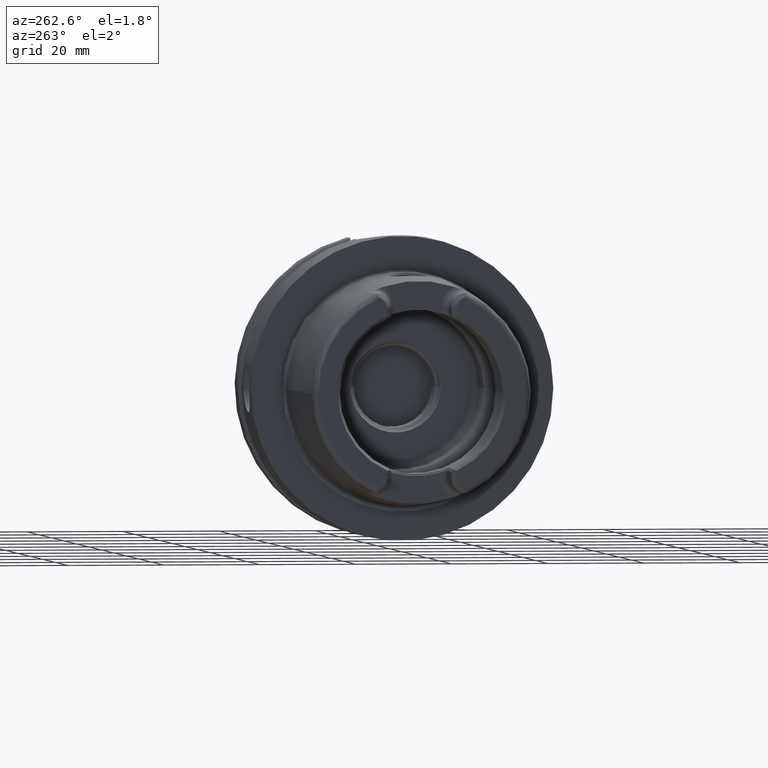
[diagram: clean part render]
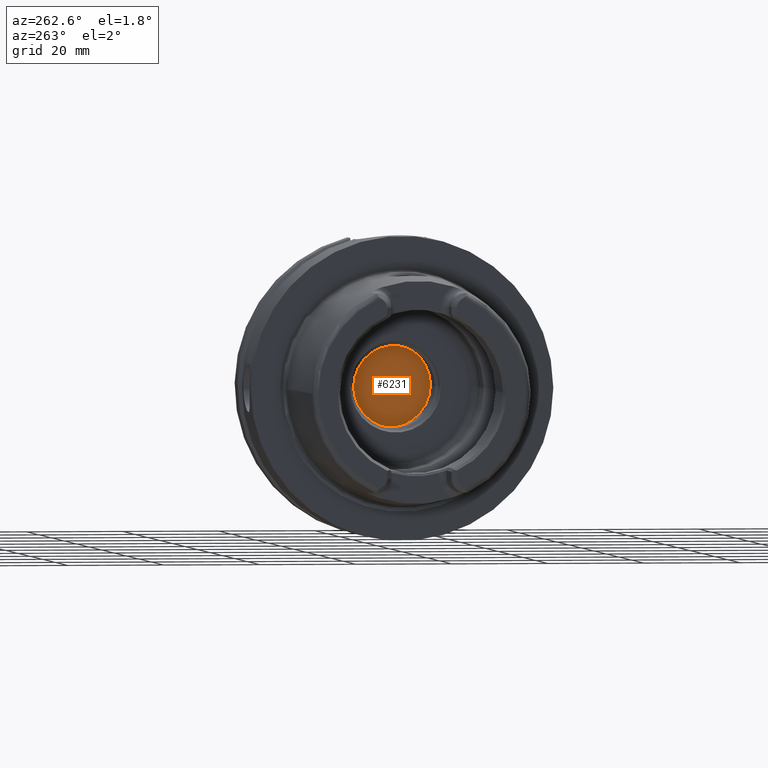
[diagram: same view with one face highlighted and labeled with its STEP entity id]
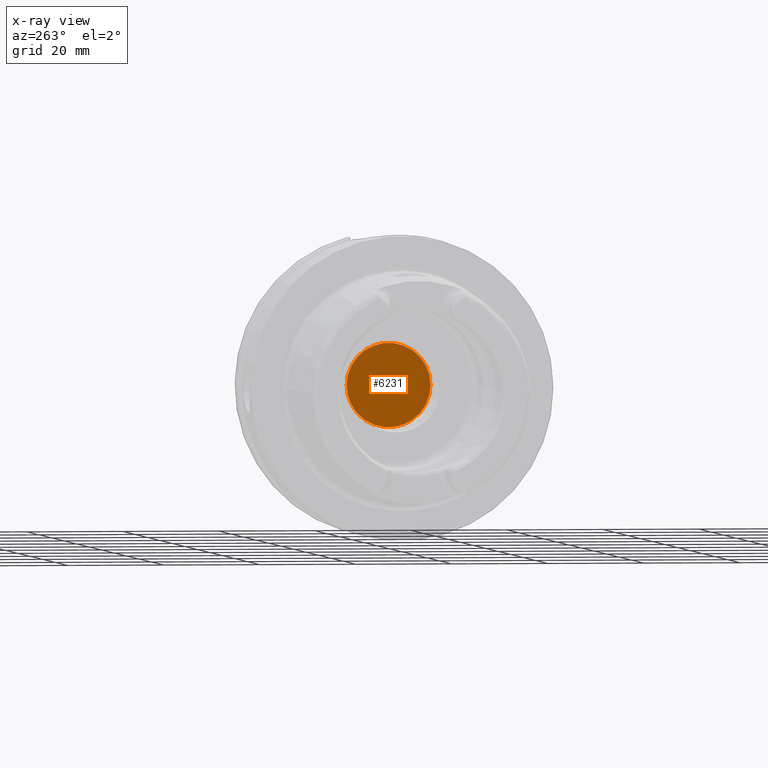
[diagram: x-ray of the same camera — body ghosted, the highlighted face saturated]
A machine part, auxiliary view. The second image highlights one B-rep face of the part: STEP entity #6231.
The next image is the same camera in x-ray: the body ghosted, the highlighted face saturated — about 0% of this face is hidden behind the body in this view.
In plain terms, the highlighted planar face has unit normal (1, 0, 0).
Its self-contained STEP definition (entity closure, byte-faithful):
#2554=CARTESIAN_POINT('',(2.18E1,0.E0,0.E0));
#2555=DIRECTION('',(1.E0,0.E0,0.E0));
#2556=DIRECTION('',(0.E0,1.E0,0.E0));
#2557=AXIS2_PLACEMENT_3D('',#2554,#2555,#2556);
#2564=CARTESIAN_POINT('',(2.18E1,0.E0,0.E0));
#2565=DIRECTION('',(-1.E0,0.E0,0.E0));
#2566=DIRECTION('',(0.E0,1.E0,0.E0));
#2567=AXIS2_PLACEMENT_3D('',#2564,#2565,#2566);
#2875=CARTESIAN_POINT('',(2.18E1,8.7325E0,0.E0));
#2877=VERTEX_POINT('',#2875);
#2885=CARTESIAN_POINT('',(2.18E1,-8.7325E0,0.E0));
#2887=VERTEX_POINT('',#2885);
#6222=CARTESIAN_POINT('',(2.18E1,0.E0,0.E0));
#6223=DIRECTION('',(1.E0,0.E0,0.E0));
#6224=DIRECTION('',(0.E0,-1.E0,0.E0));
#6225=AXIS2_PLACEMENT_3D('',#6222,#6223,#6224);
#6226=PLANE('',#6225);
#6227=ORIENTED_EDGE('',*,*,#6215,.F.);
#6228=ORIENTED_EDGE('',*,*,#6204,.T.);
#6229=EDGE_LOOP('',(#6227,#6228));
#6230=FACE_OUTER_BOUND('',#6229,.F.);
#6231=ADVANCED_FACE('',(#6230),#6226,.F.);
#2558=CIRCLE('',#2557,8.7325E0);
#2568=CIRCLE('',#2567,8.7325E0);
#6204=EDGE_CURVE('',#2877,#2887,#2558,.T.);
#6215=EDGE_CURVE('',#2877,#2887,#2568,.T.);